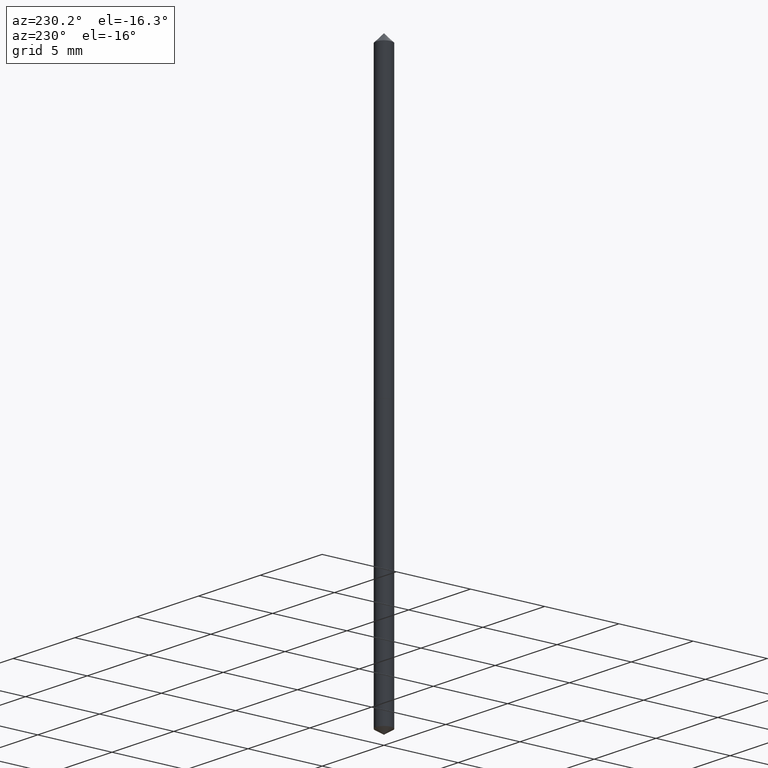
[diagram: clean part render]
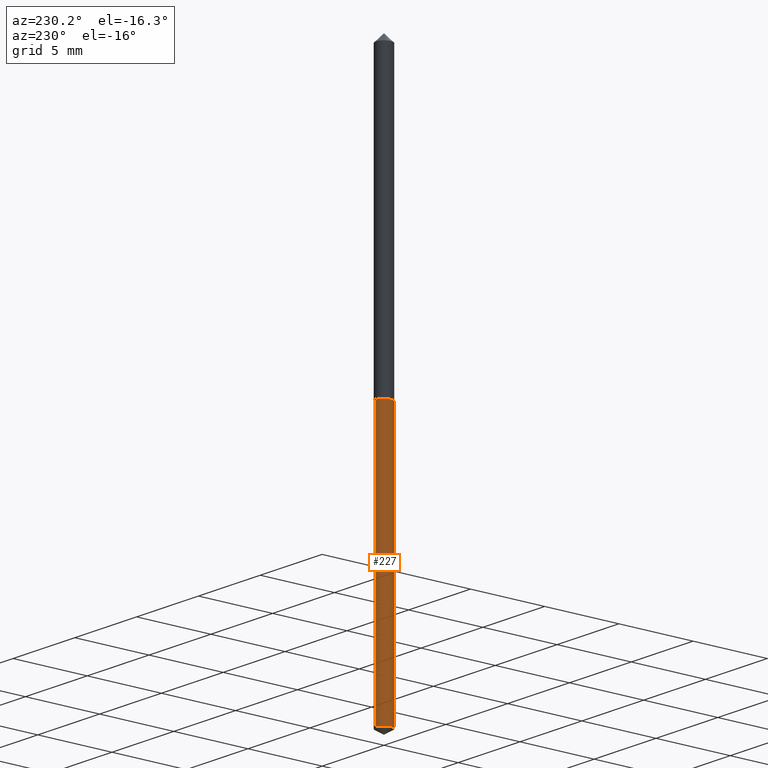
[diagram: same view with one face highlighted and labeled with its STEP entity id]
A machine part, auxiliary view. The second image highlights one B-rep face of the part: STEP entity #227.
In plain terms, the highlighted cylindrical surface (edge-blend (fillet) strip) has radius 0.5334 mm, axis along (-0, 0, 1).
Its self-contained STEP definition (entity closure, byte-faithful):
#10 = VERTEX_POINT ( 'NONE', #68 ) ;
#11 = EDGE_CURVE ( 'NONE', #291, #173, #98, .T. ) ;
#31 = LINE ( 'NONE', #336, #231 ) ;
#48 = DIRECTION ( 'NONE',  ( -2.445485663670137245E-29, 3.491457197965155630E-15, 1.000000000000000000 ) ) ;
#53 = CARTESIAN_POINT ( 'NONE',  ( 3.637357827753472311E-29, -5.193149454724271505E-15, -1.487381927000421156 ) ) ;
#54 = CARTESIAN_POINT ( 'NONE',  ( 1.492139745096575085E-16, 0.02099999999999723616, -0.7920000000000003704 ) ) ;
#56 = DIRECTION ( 'NONE',  ( -6.982962677686265133E-15, -1.000000000000000000, 6.504399984914910847E-15 ) ) ;
#57 = CIRCLE ( 'NONE', #137, 0.02100000000000000477 ) ;
#68 = CARTESIAN_POINT ( 'NONE',  ( 1.492139745096574345E-16, 0.02099999999999481101, -1.487381927000421156 ) ) ;
#72 = ORIENTED_EDGE ( 'NONE', *, *, #11, .T. ) ;
#92 = AXIS2_PLACEMENT_3D ( 'NONE', #246, #362, #56 ) ;
#98 = LINE ( 'NONE', #105, #250 ) ;
#101 = EDGE_CURVE ( 'NONE', #129, #173, #57, .T. ) ;
#105 = CARTESIAN_POINT ( 'NONE',  ( -1.466422162313922235E-16, -0.02100000000000276992, -0.7920000000000000373 ) ) ;
#113 = CARTESIAN_POINT ( 'NONE',  ( -1.466422162313922235E-16, -0.02100000000000276992, -0.7920000000000000373 ) ) ;
#129 = VERTEX_POINT ( 'NONE', #54 ) ;
#137 = AXIS2_PLACEMENT_3D ( 'NONE', #192, #196, #167 ) ;
#142 = DIRECTION ( 'NONE',  ( -6.982962677686265133E-15, -1.000000000000000000, 0.000000000000000000 ) ) ;
#167 = DIRECTION ( 'NONE',  ( -6.982962677686265133E-15, -1.000000000000000000, 6.504399984914910847E-15 ) ) ;
#173 = VERTEX_POINT ( 'NONE', #113 ) ;
#180 = CIRCLE ( 'NONE', #301, 0.02100000000000000477 ) ;
#192 = CARTESIAN_POINT ( 'NONE',  ( 1.936811294498628434E-29, -2.765253220363771699E-15, -0.7920000000000001483 ) ) ;
#196 = DIRECTION ( 'NONE',  ( -2.445485663670137245E-29, 3.491457197965156024E-15, 1.000000000000000000 ) ) ;
#203 = DIRECTION ( 'NONE',  ( -2.445485663670137245E-29, 3.491457197965155630E-15, 1.000000000000000000 ) ) ;
#214 = ORIENTED_EDGE ( 'NONE', *, *, #346, .F. ) ;
#220 = CYLINDRICAL_SURFACE ( 'NONE', #92, 0.02100000000000000477 ) ;
#227 = ADVANCED_FACE ( 'NONE', ( #302 ), #220, .T. ) ;
#231 = VECTOR ( 'NONE', #203, 39.37007874015748143 ) ;
#243 = EDGE_CURVE ( 'NONE', #10, #291, #180, .T. ) ;
#246 = CARTESIAN_POINT ( 'NONE',  ( 1.936811294498628434E-29, -2.765253220363771699E-15, -0.7920000000000001483 ) ) ;
#250 = VECTOR ( 'NONE', #48, 39.37007874015748143 ) ;
#264 = ORIENTED_EDGE ( 'NONE', *, *, #243, .T. ) ;
#277 = DIRECTION ( 'NONE',  ( -2.445485663670137245E-29, 3.491457197965156024E-15, 1.000000000000000000 ) ) ;
#291 = VERTEX_POINT ( 'NONE', #338 ) ;
#301 = AXIS2_PLACEMENT_3D ( 'NONE', #53, #277, #142 ) ;
#302 = FACE_OUTER_BOUND ( 'NONE', #354, .T. ) ;
#316 = ORIENTED_EDGE ( 'NONE', *, *, #101, .F. ) ;
#336 = CARTESIAN_POINT ( 'NONE',  ( 1.492139745096404000E-16, 0.02099999999999723616, -0.7920000000000003704 ) ) ;
#338 = CARTESIAN_POINT ( 'NONE',  ( -1.466422162313752877E-16, -0.02100000000000520201, -1.487381927000421156 ) ) ;
#346 = EDGE_CURVE ( 'NONE', #10, #129, #31, .T. ) ;
#354 = EDGE_LOOP ( 'NONE', ( #214, #264, #72, #316 ) ) ;
#362 = DIRECTION ( 'NONE',  ( -2.445485663670137245E-29, 3.491457197965156024E-15, 1.000000000000000000 ) ) ;